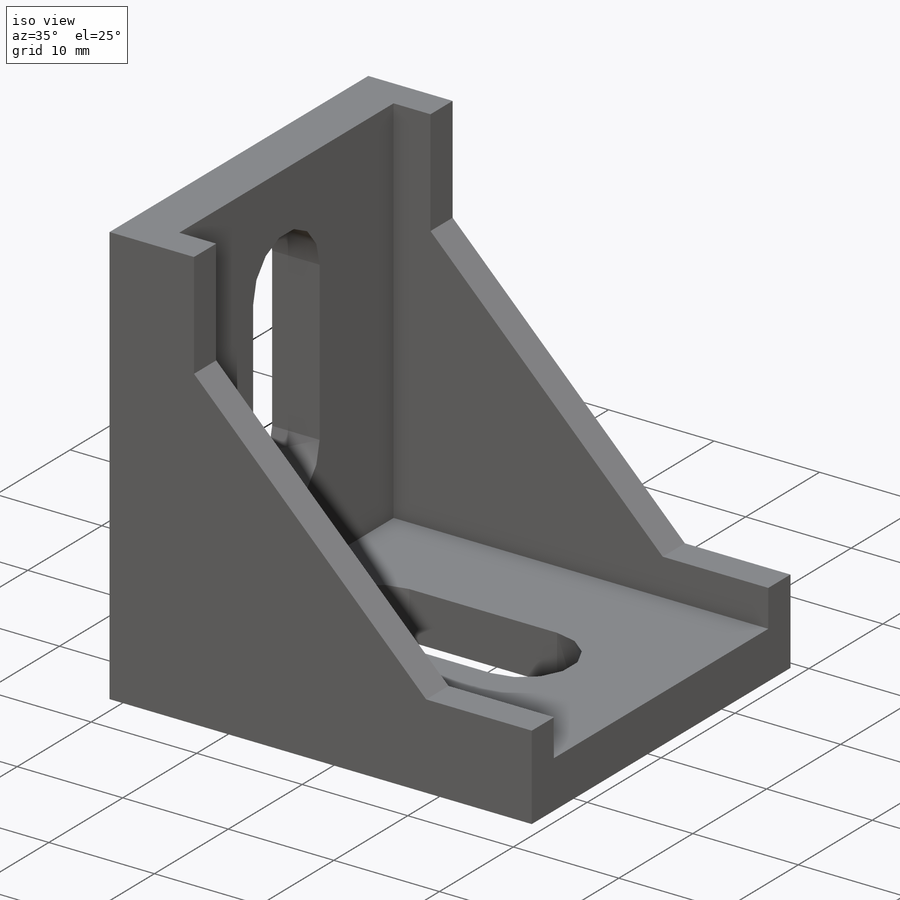
[diagram: iso view]
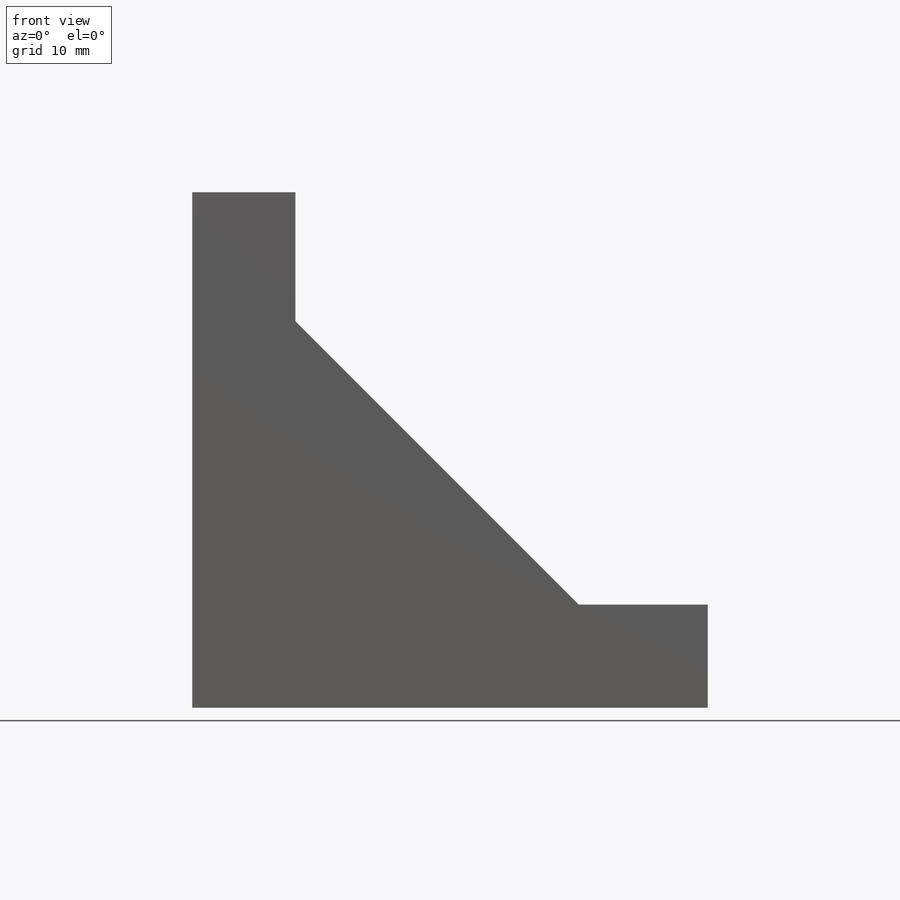
[diagram: front view]
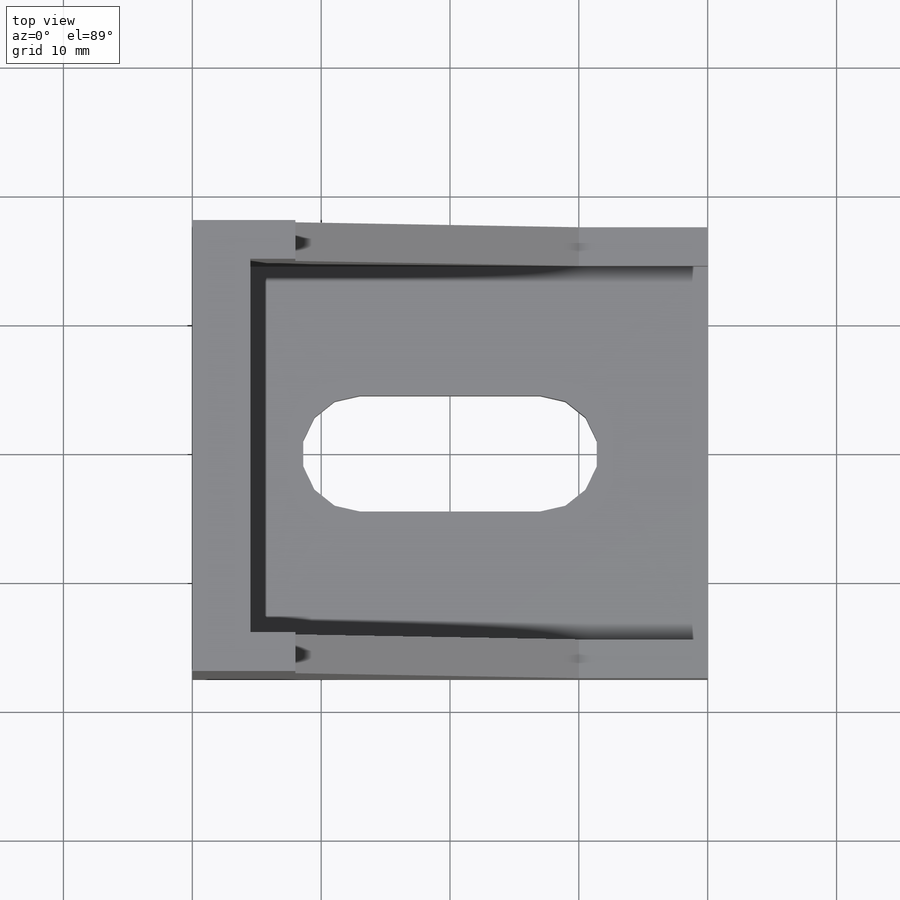
[diagram: top view]
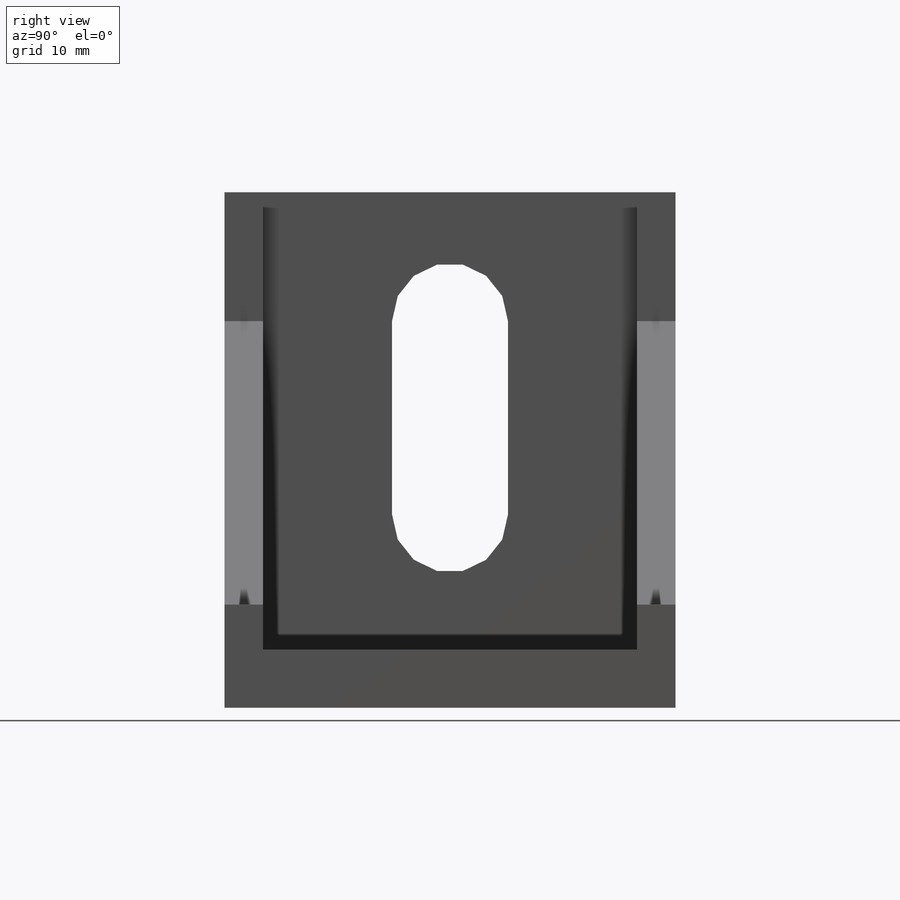
[diagram: right view]
SOLIDWORKS PART (.sldprt)
format: sldprt  version: not decoded by parser v0  size: 221,696 bytes
history: native  units: mm
features: sketch x4, plane x3, cut_extrude x3, material x1, extrude x1 (+10 scaffold rows collapsed)
feature tree (22):
  scaffold x10  (default folders/planes/origin — collapsed)
  material  "材质 <未指定>"
  plane  "前视"
  plane  "上视"
  plane  "右视"
  sketch  "草图1"  dims[D1=40.0mm D2=40.0mm D3=10.0mm D4=10.0mm D5=8.0mm D6=8.0mm]
  extrude  "凸台-拉伸1"  Depth=35mm
  sketch  "草图2"  dims[D1=4.5mm D2=4.5mm]
  cut_extrude  "切除-拉伸1"  Depth=29mm
  sketch  "草图3"  dims[c1.D3=4.5mm c1.D4=4.5mm c2.D3=8.5mm c2.D4=8.5mm c2.D5=14.0mm c2.D1=4.5mm c2.D2=4.5mm]
  cut_extrude  "切除-拉伸2"  [1 undecoded]
  sketch  "草图4"  dims[c1.D3=4.5mm c1.D4=4.5mm c2.D3=10.0mm c2.D4=15.0mm c2.D5=15.0mm c2.D1=4.5mm c2.D2=4.5mm]
  cut_extrude  "切除-拉伸3"  [1 undecoded]
decode coverage: 6 of 8 modeling features carry decoded parameters
note: 2 parameter values undecoded
note: suppression state not decoded; provenance and decode notes live in map.json
